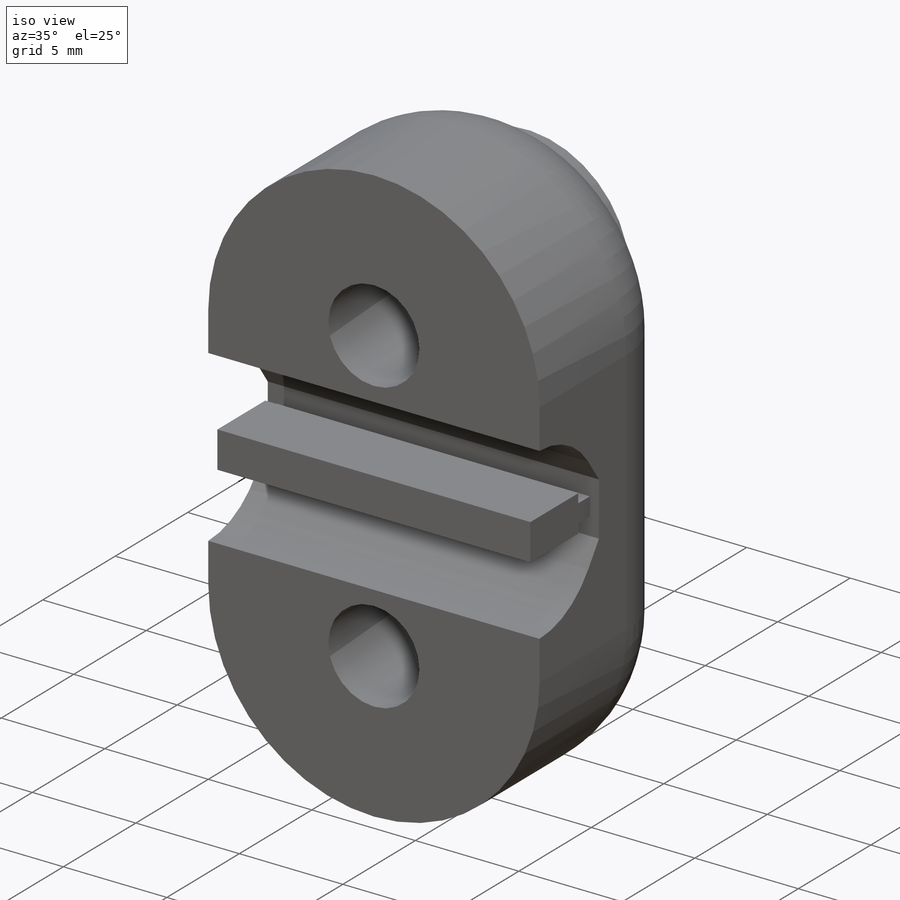
[diagram: iso view]
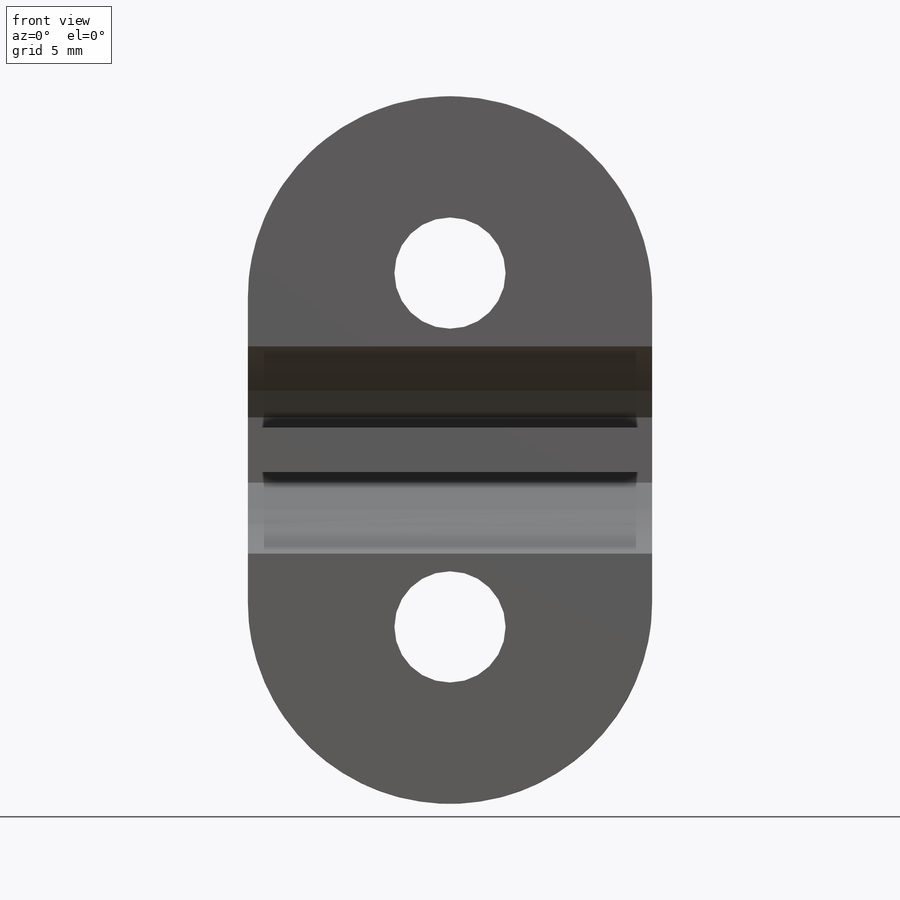
[diagram: front view]
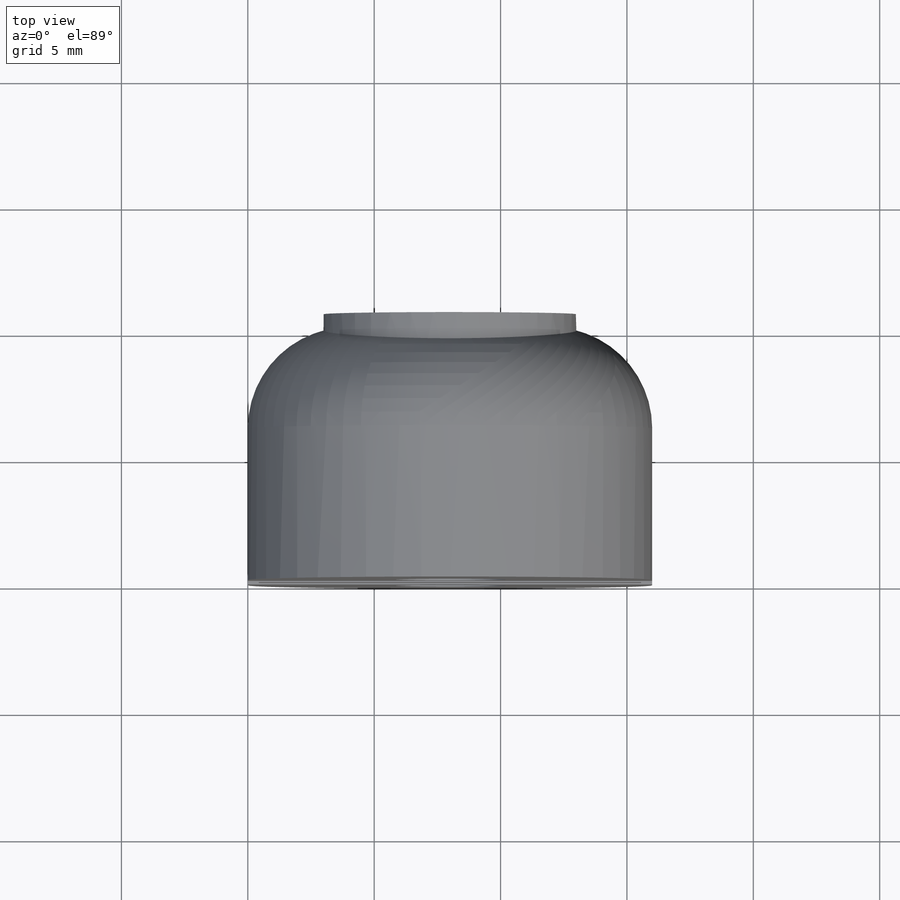
[diagram: top view]
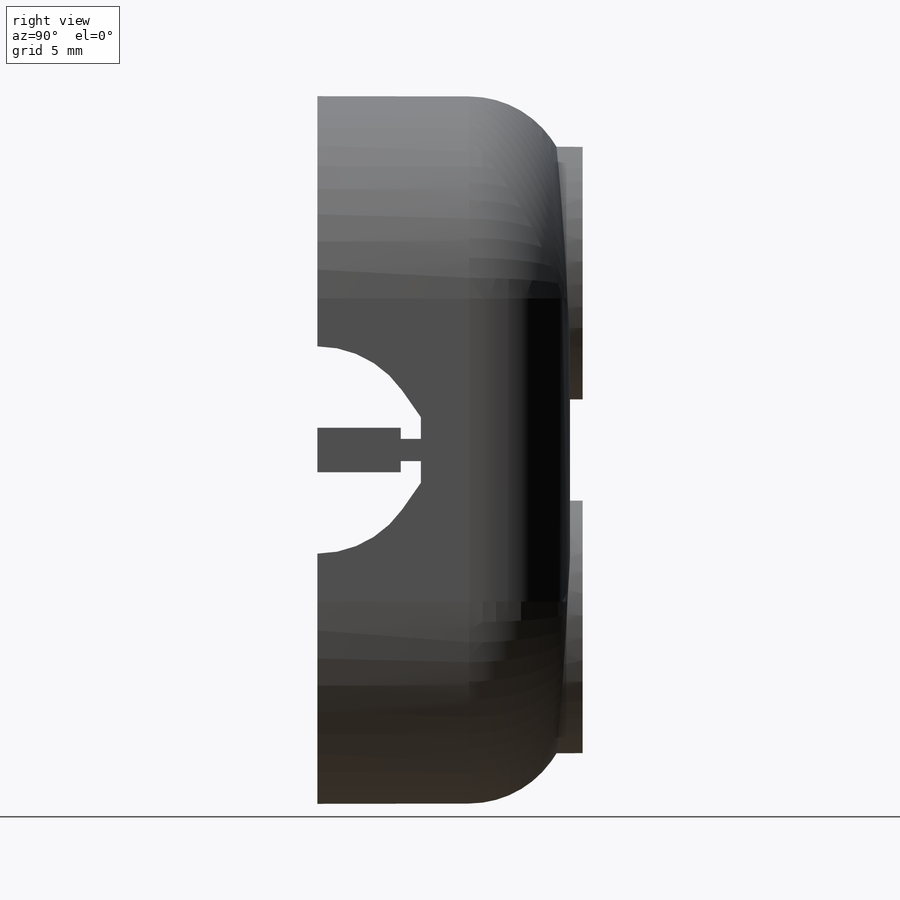
[diagram: right view]
SOLIDWORKS PART (.sldprt)
format: sldprt  version: not decoded by parser v0  size: 299,008 bytes
history: native  units: mm
features: sketch x6, extrude x4, cut_extrude x2, material x1, fillet x1 (+11 scaffold rows collapsed)
feature tree (25):
  scaffold x11  (default folders/planes/origin — collapsed)
  material  "Material <not specified>"
  sketch  "Sketch1"  dims[D1=28.0mm]
  extrude  "Boss-Extrude1"  Depth=10mm
  sketch  "Sketch4"  dims[c1.D1=~1.584468mm c1.D2=~2.461696mm c2.D1=~5.314496mm c3.D1=35.0deg]
  cut_extrude  "Cut-Extrude3"  Depth=10mm
  sketch  "Sketch5"  dims[c1.D1=3.4mm c1.D2=3.4mm c1.D3=4.4mm c1.D5=4.4mm c2.D1=8.0mm c2.D2=8.0mm c2.D3=7.0mm c2.D4=7.0mm c2.D5=5.5mm]
  cut_extrude  "Cut-Extrude4"  [1 undecoded]
  fillet  "Fillet2"  Radius=4mm
  sketch  "Sketch7"  dims[D1=~4.085707mm]
  extrude  "Boss-Extrude2"  Depth=0.5mm
  sketch  "Sketch8"  dims[c1.D5=15.12mm c2.D5=0.0deg c2.D1=0.44mm c2.D2=0.44mm c2.D3=0.44mm c2.D4=0.44mm]
  extrude  "Boss-Extrude3"  Depth=0.8mm
  sketch  "Sketch9"  dims[D1=0.88mm D2=0.88mm]
  extrude  "Boss-Extrude4"  [1 undecoded]
decode coverage: 11 of 13 modeling features carry decoded parameters
note: ~ marks probable driven/reference dimensions
note: 2 parameter values undecoded
note: suppression state not decoded; provenance and decode notes live in map.json
